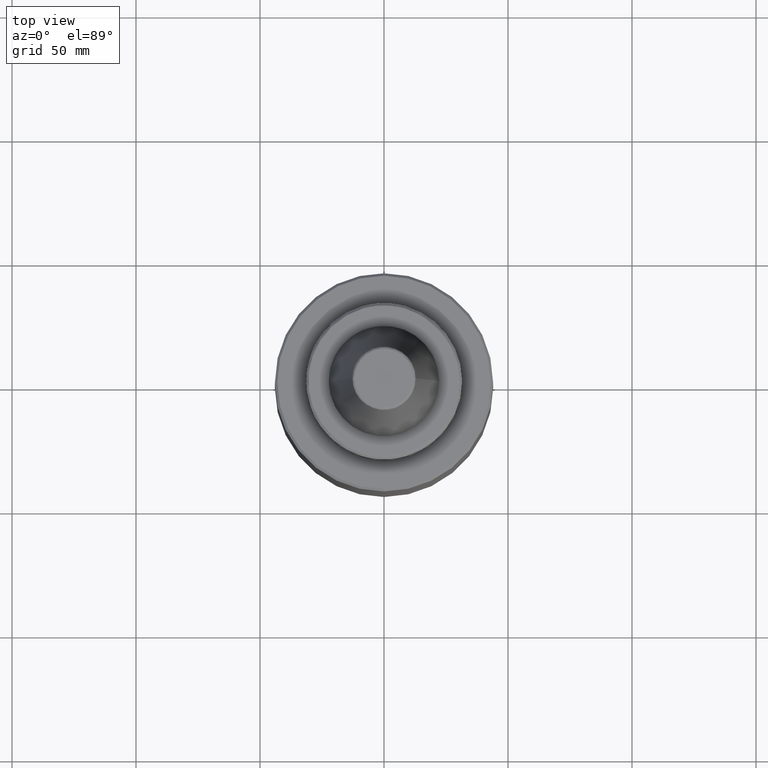
[diagram: clean part render]
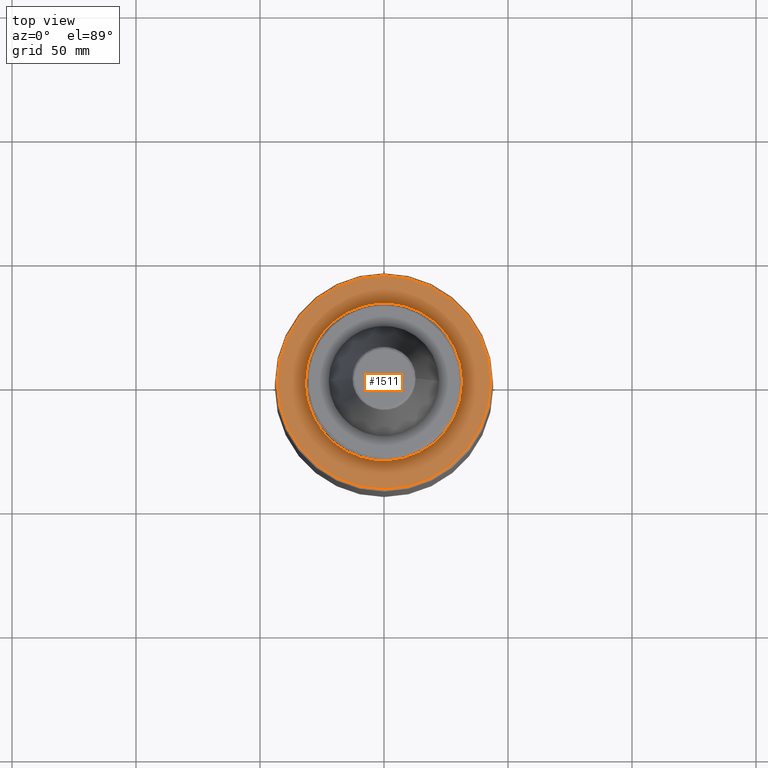
[diagram: same view with one face highlighted and labeled with its STEP entity id]
A machine part, top view. The second image highlights one B-rep face of the part: STEP entity #1511.
In plain terms, the highlighted planar face has unit normal (0, 0, 1).
Its self-contained STEP definition (entity closure, byte-faithful):
#6 = CARTESIAN_POINT ( 'NONE',  ( -27.07609555106935800, -16.42413627984889500, -29.50000000000000000 ) ) ;
#16 = CARTESIAN_POINT ( 'NONE',  ( -17.20717148331711500, -26.56388929144873900, -29.50000000000000400 ) ) ;
#34 = CARTESIAN_POINT ( 'NONE',  ( -8.261513448397821000, -30.58311603042431800, -29.50000000000000400 ) ) ;
#48 = CARTESIAN_POINT ( 'NONE',  ( 6.200021980427727900, -31.03726868350097600, -29.50000000000000400 ) ) ;
#58 = CARTESIAN_POINT ( 'NONE',  ( 17.43336824129123000, -26.41599589247358500, -29.50000000000000700 ) ) ;
#67 = CARTESIAN_POINT ( 'NONE',  ( 29.03418460625253400, -12.64449650263267700, -29.50000000000000400 ) ) ;
#84 = CARTESIAN_POINT ( 'NONE',  ( -29.25290564069809600, -12.08397884370890400, -29.50000000000001100 ) ) ;
#96 = CARTESIAN_POINT ( 'NONE',  ( 31.19626306432113000, -5.342471463923958600, -29.50000000000000400 ) ) ;
#280 = CARTESIAN_POINT ( 'NONE',  ( -30.30064354285053300, -9.243946463727466400, -29.50000000000000400 ) ) ;
#295 = CARTESIAN_POINT ( 'NONE',  ( -26.41599589247657000, -17.43336824128736500, -29.50000000000000400 ) ) ;
#308 = CARTESIAN_POINT ( 'NONE',  ( -16.92611399322744200, -26.74437667563228500, -29.50000000000000400 ) ) ;
#321 = CARTESIAN_POINT ( 'NONE',  ( -5.640117317328692300, -31.14341794274573500, -29.50000000000000700 ) ) ;
#329 = CARTESIAN_POINT ( 'NONE',  ( 7.513628569923772800, -30.75290109875445700, -29.50000000000001100 ) ) ;
#340 = VERTEX_POINT ( 'NONE', #1072 ) ;
#344 = CARTESIAN_POINT ( 'NONE',  ( 17.71735920059578400, -26.22692690785366700, -29.50000000000000400 ) ) ;
#355 = CARTESIAN_POINT ( 'NONE',  ( 27.47332660413469100, -15.73065850043774800, -29.50000000000000700 ) ) ;
#368 = CARTESIAN_POINT ( 'NONE',  ( -12.64449650265086700, -29.03418460623957700, -29.50000000000000400 ) ) ;
#394 = DIRECTION ( 'NONE',  ( 0.0000000000000000000, 0.0000000000000000000, 1.000000000000000000 ) ) ;
#477 = EDGE_LOOP ( 'NONE', ( #1833, #1940 ) ) ;
#497 = CARTESIAN_POINT ( 'NONE',  ( -31.10989179215154000, -5.822209543889628400, -29.50000000000000000 ) ) ;
#568 = CARTESIAN_POINT ( 'NONE',  ( -30.75290109874051900, -7.513628569974984300, -29.50000000000000700 ) ) ;
#576 = CARTESIAN_POINT ( 'NONE',  ( -26.22692690786365700, -17.71735920058290500, -29.50000000000001100 ) ) ;
#586 = CARTESIAN_POINT ( 'NONE',  ( -11.59052507674464200, -29.45137044916126700, -29.50000000000000400 ) ) ;
#599 = CARTESIAN_POINT ( 'NONE',  ( -4.089757035850751300, -31.39133274997519500, -29.50000000000000400 ) ) ;
#601 = CARTESIAN_POINT ( 'NONE',  ( -31.11611089903441800, -5.788870814058767200, -29.50000000000000700 ) ) ;
#610 = CARTESIAN_POINT ( 'NONE',  ( 11.68001662415784600, -29.41599406940228400, -29.50000000000000400 ) ) ;
#621 = CARTESIAN_POINT ( 'NONE',  ( 17.54713124299296100, -26.34057274326881900, -29.50000000000000700 ) ) ;
#631 = CARTESIAN_POINT ( 'NONE',  ( 29.50980723845220800, -11.44120391862710700, -29.50000000000000700 ) ) ;
#646 = CARTESIAN_POINT ( 'NONE',  ( 11.86742848982006200, -29.34100692253654700, -29.50000000000000400 ) ) ;
#667 = PLANE ( 'NONE',  #2800 ) ;
#695 = DIRECTION ( 'NONE',  ( 1.000000000000000000, 0.0000000000000000000, -0.0000000000000000000 ) ) ;
#779 = CARTESIAN_POINT ( 'NONE',  ( -31.64999999999999900, 5.101161833143714000E-015, -29.50000000000000000 ) ) ;
#807 = VERTEX_POINT ( 'NONE', #779 ) ;
#861 = CARTESIAN_POINT ( 'NONE',  ( -29.37834403326109700, -11.77440243798705300, -29.50000000000000700 ) ) ;
#872 = CARTESIAN_POINT ( 'NONE',  ( -23.15232238993127500, -21.60756314096255400, -29.50000000000000400 ) ) ;
#886 = CARTESIAN_POINT ( 'NONE',  ( -11.53081260845848500, -29.47480116625430200, -29.50000000000000400 ) ) ;
#901 = CARTESIAN_POINT ( 'NONE',  ( -4.925308226896402400, -31.26610762366206200, -29.50000000000000700 ) ) ;
#912 = CARTESIAN_POINT ( 'NONE',  ( 10.69598742884729400, -29.80558082378211500, -29.49999999999999600 ) ) ;
#929 = CARTESIAN_POINT ( 'NONE',  ( 21.60756314099394300, -23.15232238990693100, -29.50000000000000700 ) ) ;
#943 = CARTESIAN_POINT ( 'NONE',  ( 29.59050804948334300, -11.23183706391116300, -29.50000000000000400 ) ) ;
#954 = CARTESIAN_POINT ( 'NONE',  ( 31.13257993299622900, -5.699635186038880100, -29.50000000000000400 ) ) ;
#962 = CARTESIAN_POINT ( 'NONE',  ( 31.64999999999999900, 0.0000000000000000000, -29.50000000000000000 ) ) ;
#1064 = ORIENTED_EDGE ( 'NONE', *, *, #1759, .T. ) ;
#1072 = CARTESIAN_POINT ( 'NONE',  ( 31.64999999999999900, 0.0000000000000000000, -29.50000000000000000 ) ) ;
#1156 = CARTESIAN_POINT ( 'NONE',  ( -29.34100692253506200, -11.86742848982111200, -29.50000000000000700 ) ) ;
#1167 = CARTESIAN_POINT ( 'NONE',  ( -17.26204692002727700, -26.52826462648969800, -29.50000000000000000 ) ) ;
#1172 = CIRCLE ( 'NONE', #3500, 42.99999999999998600 ) ;
#1177 = CARTESIAN_POINT ( 'NONE',  ( -11.23183706392010500, -29.59050804948207200, -29.50000000000000000 ) ) ;
#1187 = CARTESIAN_POINT ( 'NONE',  ( -2.413468226466443800, -31.58398024170841400, -29.50000000000001100 ) ) ;
#1203 = CARTESIAN_POINT ( 'NONE',  ( 11.77440243798644700, -29.37834403326194300, -29.50000000000000400 ) ) ;
#1209 = CARTESIAN_POINT ( 'NONE',  ( 25.29549364467025200, -19.14772548220498600, -29.50000000000000000 ) ) ;
#1222 = CARTESIAN_POINT ( 'NONE',  ( 30.04727224097230800, -9.967798405709757500, -29.50000000000000000 ) ) ;
#1232 = CARTESIAN_POINT ( 'NONE',  ( 28.37186178965306700, -14.09884460350804500, -29.50000000000000700 ) ) ;
#1368 = CARTESIAN_POINT ( 'NONE',  ( -31.47387163679484700, -3.855757475123994900, -29.50000000000000000 ) ) ;
#1418 = CARTESIAN_POINT ( 'NONE',  ( -28.69681995900775100, -13.36898882273398600, -29.50000000000001400 ) ) ;
#1430 = CARTESIAN_POINT ( 'NONE',  ( -19.14772548223935500, -25.29549364464998000, -29.50000000000000400 ) ) ;
#1442 = CARTESIAN_POINT ( 'NONE',  ( -9.967798405738395900, -30.04727224096823300, -29.50000000000000000 ) ) ;
#1454 = CARTESIAN_POINT ( 'NONE',  ( 5.885247998906580200, -31.09802881274082200, -29.50000000000000400 ) ) ;
#1464 = CARTESIAN_POINT ( 'NONE',  ( 15.04422307662112200, -27.88209774165038700, -29.50000000000000700 ) ) ;
#1472 = CARTESIAN_POINT ( 'NONE',  ( 26.63630893304099300, -17.09486442576637400, -29.50000000000000400 ) ) ;
#1492 = CARTESIAN_POINT ( 'NONE',  ( 29.74798957516023300, -10.81198370734984900, -29.50000000000000700 ) ) ;
#1502 = CARTESIAN_POINT ( 'NONE',  ( 31.26609520832629500, -4.925375324073615800, -29.50000000000000400 ) ) ;
#1511 = ADVANCED_FACE ( 'NONE', ( #3148, #3311 ), #667, .T. ) ;
#1612 = EDGE_CURVE ( 'NONE', #340, #807, #2982, .T. ) ;
#1666 = CARTESIAN_POINT ( 'NONE',  ( -31.08009448244251900, -5.979765201420449600, -29.50000000000000400 ) ) ;
#1676 = CARTESIAN_POINT ( 'NONE',  ( -29.07277764978576700, -12.51503781658421700, -29.50000000000000000 ) ) ;
#1685 = CARTESIAN_POINT ( 'NONE',  ( 5.327213576290983700E-015, -42.99999999999998600, -29.50000000000000000 ) ) ;
#1688 = CARTESIAN_POINT ( 'NONE',  ( -16.53033406039365600, -26.99260270316083100, -29.50000000000000400 ) ) ;
#1695 = CARTESIAN_POINT ( 'NONE',  ( -5.727594904005914400, -31.12745012435315000, -29.50000000000000700 ) ) ;
#1703 = CARTESIAN_POINT ( 'NONE',  ( 5.979765201412178000, -31.08009448244473900, -29.50000000000000000 ) ) ;
#1715 = CARTESIAN_POINT ( 'NONE',  ( 13.36898882272739000, -28.69681995901695600, -29.50000000000000000 ) ) ;
#1729 = CARTESIAN_POINT ( 'NONE',  ( 26.56388929145034100, -17.20717148331487700, -29.50000000000000400 ) ) ;
#1739 = CARTESIAN_POINT ( 'NONE',  ( -31.09802881273952500, -5.885247998911362200, -29.50000000000000000 ) ) ;
#1746 = DIRECTION ( 'NONE',  ( 0.0000000000000000000, 1.000000000000000000, 0.0000000000000000000 ) ) ;
#1749 = DIRECTION ( 'NONE',  ( 0.0000000000000000000, 3.942553354492745700E-017, -1.000000000000000000 ) ) ;
#1750 = CARTESIAN_POINT ( 'NONE',  ( 31.39131146654246200, -4.089872059583135500, -29.50000000000000700 ) ) ;
#1751 = CARTESIAN_POINT ( 'NONE',  ( 0.0000000000000000000, -3.942553354492735900E-017, -29.50000000000000000 ) ) ;
#1759 = EDGE_CURVE ( 'NONE', #807, #340, #3274, .T. ) ;
#1793 = VERTEX_POINT ( 'NONE', #3159 ) ;
#1833 = ORIENTED_EDGE ( 'NONE', *, *, #2231, .F. ) ;
#1940 = ORIENTED_EDGE ( 'NONE', *, *, #2410, .F. ) ;
#1945 = CARTESIAN_POINT ( 'NONE',  ( -26.45433370375787500, -17.37512947056418300, -29.49999999999999600 ) ) ;
#1962 = CARTESIAN_POINT ( 'NONE',  ( -15.73065850046162600, -27.47332660411766600, -29.50000000000000400 ) ) ;
#1969 = CARTESIAN_POINT ( 'NONE',  ( -5.342435519007597800, -31.19626971539387100, -29.50000000000000000 ) ) ;
#1984 = CARTESIAN_POINT ( 'NONE',  ( 6.639402097802073600, -30.94770097260141000, -29.50000000000000000 ) ) ;
#1990 = CARTESIAN_POINT ( 'NONE',  ( 16.42413627984385400, -27.07609555107639900, -29.50000000000000400 ) ) ;
#2006 = CARTESIAN_POINT ( 'NONE',  ( 26.99260270317076400, -16.53033406037971200, -29.50000000000001100 ) ) ;
#2016 = CARTESIAN_POINT ( 'NONE',  ( -24.24548925215356500, -20.39569566202949200, -29.50000000000000700 ) ) ;
#2061 = CARTESIAN_POINT ( 'NONE',  ( 0.0000000000000000000, 31.65000000000000600, -29.50000000000000400 ) ) ;
#2091 = DIRECTION ( 'NONE',  ( 0.0000000000000000000, 1.000000000000000000, 0.0000000000000000000 ) ) ;
#2097 = DIRECTION ( 'NONE',  ( 0.0000000000000000000, 3.942553354492745700E-017, -1.000000000000000000 ) ) ;
#2099 = CARTESIAN_POINT ( 'NONE',  ( 0.0000000000000000000, -3.942553354492735900E-017, -29.50000000000000000 ) ) ;
#2138 = CARTESIAN_POINT ( 'NONE',  ( -31.64999999999999900, 5.101161833143714000E-015, -29.50000000000000000 ) ) ;
#2186 = ORIENTED_EDGE ( 'NONE', *, *, #1612, .T. ) ;
#2216 = CARTESIAN_POINT ( 'NONE',  ( -30.94770097259329600, -6.639402097831948300, -29.50000000000001400 ) ) ;
#2228 = CARTESIAN_POINT ( 'NONE',  ( -26.34057274327467400, -17.54713124298542200, -29.50000000000001400 ) ) ;
#2231 = EDGE_CURVE ( 'NONE', #1793, #2511, #1172, .T. ) ;
#2244 = CARTESIAN_POINT ( 'NONE',  ( -11.61912571560149300, -29.44010020120048000, -29.50000000000000400 ) ) ;
#2258 = CARTESIAN_POINT ( 'NONE',  ( -5.550837089210300900, -31.15954442498183500, -29.50000000000000700 ) ) ;
#2272 = CARTESIAN_POINT ( 'NONE',  ( 9.243946463659197500, -30.30064354286910000, -29.50000000000000700 ) ) ;
#2283 = CARTESIAN_POINT ( 'NONE',  ( 18.11164195368740000, -25.95817551062893400, -29.50000000000000000 ) ) ;
#2299 = CARTESIAN_POINT ( 'NONE',  ( 29.45137044916146300, -11.59052507674328900, -29.50000000000000400 ) ) ;
#2306 = CARTESIAN_POINT ( 'NONE',  ( 5.822209543887208100, -31.10989179215218700, -29.50000000000000400 ) ) ;
#2321 = CARTESIAN_POINT ( 'NONE',  ( 31.58395186379808800, -2.413621591442965300, -29.50000000000000700 ) ) ;
#2361 = CARTESIAN_POINT ( 'NONE',  ( -31.64999999999998400, -1.936047272175806200, -29.50000000000000000 ) ) ;
#2410 = EDGE_CURVE ( 'NONE', #2511, #1793, #2542, .T. ) ;
#2443 = EDGE_LOOP ( 'NONE', ( #1064, #2186 ) ) ;
#2511 = VERTEX_POINT ( 'NONE', #1685 ) ;
#2513 = CARTESIAN_POINT ( 'NONE',  ( -29.41599406940262200, -11.68001662415660700, -29.50000000000000400 ) ) ;
#2524 = CARTESIAN_POINT ( 'NONE',  ( -25.40636159118718900, -18.88854420123620400, -29.50000000000001100 ) ) ;
#2534 = CARTESIAN_POINT ( 'NONE',  ( -14.09884460353986800, -28.37186178963038300, -29.50000000000000700 ) ) ;
#2542 = CIRCLE ( 'NONE', #3029, 42.99999999999998600 ) ;
#2548 = CARTESIAN_POINT ( 'NONE',  ( -0.9677582287776547200, -31.65001621594876700, -29.50000000000000700 ) ) ;
#2563 = CARTESIAN_POINT ( 'NONE',  ( 11.71233645736165100, -29.40314197785891500, -29.50000000000000700 ) ) ;
#2572 = CARTESIAN_POINT ( 'NONE',  ( 20.39569566208442500, -24.24548925211096800, -29.50000000000001100 ) ) ;
#2586 = CARTESIAN_POINT ( 'NONE',  ( 29.44010020120006700, -11.61912571560205600, -29.50000000000000000 ) ) ;
#2594 = CARTESIAN_POINT ( 'NONE',  ( -5.699629751509859500, -31.13258093857508500, -29.50000000000000400 ) ) ;
#2798 = CARTESIAN_POINT ( 'NONE',  ( -29.80558082377152500, -10.69598742888630800, -29.50000000000000700 ) ) ;
#2800 = AXIS2_PLACEMENT_3D ( 'NONE', #2061, #394, #695 ) ;
#2809 = CARTESIAN_POINT ( 'NONE',  ( -25.95817551064757100, -18.11164195366337600, -29.50000000000001100 ) ) ;
#2819 = CARTESIAN_POINT ( 'NONE',  ( -11.44120391863173900, -29.50980723845154300, -29.50000000000000700 ) ) ;
#2831 = CARTESIAN_POINT ( 'NONE',  ( 1.935516457555317600, -31.64996756810247500, -29.50000000000000700 ) ) ;
#2843 = CARTESIAN_POINT ( 'NONE',  ( 12.51503781658037600, -29.07277764979113500, -29.50000000000000000 ) ) ;
#2854 = CARTESIAN_POINT ( 'NONE',  ( 23.92466259167479900, -20.83514409384886400, -29.50000000000000700 ) ) ;
#2868 = CARTESIAN_POINT ( 'NONE',  ( 29.47480116625469300, -11.53081260845581100, -29.50000000000001400 ) ) ;
#2881 = CARTESIAN_POINT ( 'NONE',  ( 18.88854420127739400, -25.40636159115523500, -29.50000000000000700 ) ) ;
#2969 = CARTESIAN_POINT ( 'NONE',  ( 31.12745012435305700, -5.727594904006590300, -29.50000000000000700 ) ) ;
#2982 = B_SPLINE_CURVE_WITH_KNOTS ( 'NONE', 3,
 ( #962, #3412, #2321, #1750, #1502, #96, #3129, #3398, #954, #2969, #3381, #3115, #1222, #1492, #943, #631, #2868, #2299, #2586, #67, #1232, #355, #2006, #3367, #1472, #1729, #3106, #1209, #2854, #929, #2572, #2881, #2283, #344, #621, #58, #3357, #1990, #1464, #1715, #2843, #3095, #646, #1203, #2563, #610, #912, #2272, #329, #1984, #48, #1703, #1454, #2306, #3086, #3345, #2831, #2548, #1187, #599, #901, #1969, #2258, #321, #2594, #1695, #3336, #34, #1442, #3077, #1177, #2819, #886, #586, #2244, #368, #2534, #1962, #1688, #308, #3327, #16, #1167, #1430, #3065, #872, #2016, #2524, #2809, #576, #2228, #295, #1945, #6, #3316, #1418, #1676, #84, #1156, #861, #3058, #2513, #2798, #280, #568, #2216, #3577, #1666, #1739, #497, #601, #1368, #2361, #2138 ),
 .UNSPECIFIED., .F., .F.,
 ( 4, 1, 1, 1, 1, 1, 2, 2, 1, 1, 1, 1, 1, 2, 2, 1, 1, 1, 1, 2, 2, 2, 1, 1, 1, 1, 2, 2, 1, 1, 1, 1, 1, 2, 2, 1, 1, 1, 1, 1, 2, 2, 2, 1, 1, 1, 1, 1, 2, 2, 1, 1, 1, 1, 1, 2, 2, 1, 1, 1, 1, 2, 2, 2, 1, 1, 1, 1, 2, 2, 1, 1, 1, 1, 1, 2, 2, 1, 1, 1, 1, 1, 2, 2, 4 ),
 ( 0.0000000000000000000, 0.03124999999999720400, 0.04687499999999581600, 0.05468749999999515000, 0.05859374999999481000, 0.06054687499999462900, 0.06152343749999455300, 0.06249999999999447700, 0.09374999999999258900, 0.1093749999999916200, 0.1171874999999911200, 0.1210937499999908300, 0.1230468749999907200, 0.1240234374999906700, 0.1249999999999906500, 0.1562499999999905100, 0.1718749999999904800, 0.1796874999999904500, 0.1835937499999904000, 0.1855468749999903100, 0.1874999999999902000, 0.2499999999999856800, 0.2812499999999834000, 0.2968749999999822400, 0.3046874999999817900, 0.3085937499999816300, 0.3105468749999815100, 0.3124999999999814600, 0.3437499999999812900, 0.3593749999999812400, 0.3671874999999811800, 0.3710937499999811800, 0.3730468749999811800, 0.3740234374999811800, 0.3749999999999811800, 0.4062499999999812900, 0.4218749999999813500, 0.4296874999999813500, 0.4335937499999813500, 0.4355468749999813500, 0.4365234374999813500, 0.4374999999999814000, 0.4999999999999840100, 0.5312499999999853500, 0.5468749999999859000, 0.5546874999999862300, 0.5585937499999864600, 0.5605468749999864600, 0.5615234374999864600, 0.5624999999999865700, 0.5937499999999877900, 0.6093749999999885600, 0.6171874999999889000, 0.6210937499999890100, 0.6230468749999892300, 0.6240234374999892300, 0.6249999999999892300, 0.6562499999999902300, 0.6718749999999906700, 0.6796874999999909000, 0.6835937499999910100, 0.6855468749999910100, 0.6874999999999911200, 0.7499999999999931200, 0.7812499999999941200, 0.7968749999999946700, 0.8046874999999948900, 0.8085937499999951200, 0.8105468749999953400, 0.8124999999999954500, 0.8437499999999967800, 0.8593749999999974500, 0.8671874999999977800, 0.8710937499999980000, 0.8730468749999980000, 0.8740234374999981100, 0.8749999999999981100, 0.9062499999999984500, 0.9218749999999985600, 0.9296874999999986700, 0.9335937499999987800, 0.9355468749999987800, 0.9365234374999987800, 0.9374999999999987800, 1.000000000000000000 ),
 .UNSPECIFIED. ) ;
#3029 = AXIS2_PLACEMENT_3D ( 'NONE', #1751, #1749, #1746 ) ;
#3058 = CARTESIAN_POINT ( 'NONE',  ( -29.40314197785847800, -11.71233645736195000, -29.50000000000000400 ) ) ;
#3065 = CARTESIAN_POINT ( 'NONE',  ( -20.83514409380016700, -23.92466259173757600, -29.50000000000000700 ) ) ;
#3077 = CARTESIAN_POINT ( 'NONE',  ( -10.81198370736655600, -29.74798957515786700, -29.50000000000000400 ) ) ;
#3086 = CARTESIAN_POINT ( 'NONE',  ( 5.788868074911690100, -31.11611140596767600, -29.49999999999999600 ) ) ;
#3095 = CARTESIAN_POINT ( 'NONE',  ( 12.08397884370684800, -29.25290564070095900, -29.50000000000000400 ) ) ;
#3106 = CARTESIAN_POINT ( 'NONE',  ( 26.52826462648907600, -17.26204692002834700, -29.50000000000000400 ) ) ;
#3115 = CARTESIAN_POINT ( 'NONE',  ( 30.58311603042974600, -8.261513448359641700, -29.50000000000000400 ) ) ;
#3129 = CARTESIAN_POINT ( 'NONE',  ( 31.15954098859427300, -5.550855660750418300, -29.50000000000000700 ) ) ;
#3148 = FACE_BOUND ( 'NONE', #2443, .T. ) ;
#3159 = CARTESIAN_POINT ( 'NONE',  ( 0.0000000000000000000, 42.99999999999998600, -29.50000000000000000 ) ) ;
#3222 = CARTESIAN_POINT ( 'NONE',  ( 31.64999999999999900, 0.0000000000000000000, -29.50000000000000000 ) ) ;
#3224 = CARTESIAN_POINT ( 'NONE',  ( 31.64999999999999900, 1.936047272235574400, -29.50000000000000700 ) ) ;
#3230 = CARTESIAN_POINT ( 'NONE',  ( 31.47387163679484700, 3.855757475183676100, -29.49999999999999600 ) ) ;
#3231 = CARTESIAN_POINT ( 'NONE',  ( 31.11611089903440700, 5.788870814057825800, -29.49999999999999600 ) ) ;
#3232 = CARTESIAN_POINT ( 'NONE',  ( 31.10989179215071900, 5.822209543892134900, -29.50000000000000700 ) ) ;
#3233 = CARTESIAN_POINT ( 'NONE',  ( 31.09802881273790800, 5.885247998916315600, -29.50000000000000700 ) ) ;
#3238 = CARTESIAN_POINT ( 'NONE',  ( 31.08009448243968400, 5.979765201429001900, -29.50000000000000700 ) ) ;
#3241 = CARTESIAN_POINT ( 'NONE',  ( 31.03726868349115300, 6.200021980460300100, -29.50000000000000700 ) ) ;
#3244 = CARTESIAN_POINT ( 'NONE',  ( 30.94770097258308500, 6.639402097862878300, -29.50000000000000700 ) ) ;
#3246 = CARTESIAN_POINT ( 'NONE',  ( 30.75290109872301900, 7.513628570028020100, -29.50000000000000700 ) ) ;
#3248 = CARTESIAN_POINT ( 'NONE',  ( 30.30064354282721300, 9.243946463798161900, -29.50000000000000400 ) ) ;
#3251 = CARTESIAN_POINT ( 'NONE',  ( 29.80558082375818100, 10.69598742892670300, -29.49999999999999600 ) ) ;
#3253 = CARTESIAN_POINT ( 'NONE',  ( 29.41599406940305500, 11.68001662415535500, -29.50000000000001100 ) ) ;
#3262 = CARTESIAN_POINT ( 'NONE',  ( 29.40314197785761900, 11.71233645736371700, -29.50000000000000700 ) ) ;
#3272 = CARTESIAN_POINT ( 'NONE',  ( 29.37834403325937100, 11.77440243799053800, -29.50000000000000700 ) ) ;
#3274 = B_SPLINE_CURVE_WITH_KNOTS ( 'NONE', 3,
 ( #3574, #3561, #3559, #3556, #3555, #3554, #3549, #3547, #3545, #3542, #3536, #3534, #3531, #3525, #3522, #3519, #3514, #3513, #3512, #3508, #3501, #3499, #3497, #3496, #3493, #3488, #3486, #3483, #3475, #3473, #3470, #3469, #3466, #3463, #3460, #3458, #3455, #3454, #3444, #3443, #3439, #3438, #3434, #3429, #3425, #3424, #3419, #3417, #3415, #3413, #3411, #3407, #3405, #3401, #3399, #3394, #3389, #3385, #3383, #3382, #3379, #3376, #3373, #3370, #3368, #3365, #3361, #3360, #3359, #3358, #3355, #3350, #3347, #3346, #3342, #3341, #3339, #3337, #3333, #3332, #3328, #3324, #3322, #3321, #3319, #3313, #3308, #3304, #3302, #3299, #3297, #3296, #3293, #3291, #3289, #3284, #3281, #3277, #3276, #3272, #3262, #3253, #3251, #3248, #3246, #3244, #3241, #3238, #3233, #3232, #3231, #3230, #3224, #3222 ),
 .UNSPECIFIED., .F., .F.,
 ( 4, 1, 1, 1, 1, 1, 2, 2, 1, 1, 1, 1, 1, 2, 2, 1, 1, 1, 1, 2, 2, 2, 1, 1, 1, 1, 2, 2, 1, 1, 1, 1, 1, 2, 2, 1, 1, 1, 1, 1, 2, 2, 2, 1, 1, 1, 1, 1, 2, 2, 1, 1, 1, 1, 1, 2, 2, 1, 1, 1, 1, 2, 2, 2, 1, 1, 1, 1, 2, 2, 1, 1, 1, 1, 1, 2, 2, 1, 1, 1, 1, 1, 2, 2, 4 ),
 ( 0.0000000000000000000, 0.03124999999999748100, 0.04687499999999622500, 0.05468749999999562200, 0.05859374999999533000, 0.06054687499999519100, 0.06152343749999511500, 0.06249999999999504600, 0.09374999999999301900, 0.1093749999999920800, 0.1171874999999916000, 0.1210937499999913800, 0.1230468749999912200, 0.1240234374999911700, 0.1249999999999911200, 0.1562499999999898400, 0.1718749999999892300, 0.1796874999999888100, 0.1835937499999886500, 0.1855468749999885600, 0.1874999999999884800, 0.2499999999999875700, 0.2812499999999870700, 0.2968749999999867900, 0.3046874999999866800, 0.3085937499999865700, 0.3105468749999865100, 0.3124999999999864600, 0.3437499999999859600, 0.3593749999999856200, 0.3671874999999855100, 0.3710937499999854600, 0.3730468749999854600, 0.3740234374999854600, 0.3749999999999854000, 0.4062499999999866800, 0.4218749999999872300, 0.4296874999999875700, 0.4335937499999876800, 0.4355468749999877900, 0.4365234374999877900, 0.4374999999999878400, 0.4999999999999897900, 0.5312499999999906700, 0.5468749999999912300, 0.5546874999999914500, 0.5585937499999915600, 0.5605468749999916700, 0.5615234374999916700, 0.5624999999999917800, 0.5937499999999928900, 0.6093749999999934500, 0.6171874999999936700, 0.6210937499999937800, 0.6230468749999938900, 0.6240234374999938900, 0.6249999999999938900, 0.6562499999999941200, 0.6718749999999941200, 0.6796874999999942300, 0.6835937499999941200, 0.6855468749999941200, 0.6874999999999942300, 0.7499999999999974500, 0.7812499999999991100, 0.7968749999999998900, 0.8046875000000004400, 0.8085937500000006700, 0.8105468750000008900, 0.8125000000000010000, 0.8437500000000013300, 0.8593750000000015500, 0.8671875000000016700, 0.8710937500000018900, 0.8730468750000018900, 0.8740234375000018900, 0.8750000000000020000, 0.9062500000000013300, 0.9218750000000011100, 0.9296875000000008900, 0.9335937500000007800, 0.9355468750000007800, 0.9365234375000007800, 0.9375000000000007800, 1.000000000000000000 ),
 .UNSPECIFIED. ) ;
#3276 = CARTESIAN_POINT ( 'NONE',  ( 29.34100692253208800, 11.86742848982714400, -29.50000000000000700 ) ) ;
#3277 = CARTESIAN_POINT ( 'NONE',  ( 29.25290564069233000, 12.08397884372054800, -29.49999999999999600 ) ) ;
#3281 = CARTESIAN_POINT ( 'NONE',  ( 29.07277764977504800, 12.51503781660596100, -29.50000000000000400 ) ) ;
#3284 = CARTESIAN_POINT ( 'NONE',  ( 28.69681995898934800, 13.36898882277124300, -29.50000000000000700 ) ) ;
#3289 = CARTESIAN_POINT ( 'NONE',  ( 27.88209774161356000, 15.04422307667961400, -29.50000000000000400 ) ) ;
#3291 = CARTESIAN_POINT ( 'NONE',  ( 27.07609555105534900, 16.42413627987728800, -29.50000000000000700 ) ) ;
#3293 = CARTESIAN_POINT ( 'NONE',  ( 26.45433370375874200, 17.37512947056241300, -29.50000000000000400 ) ) ;
#3296 = CARTESIAN_POINT ( 'NONE',  ( 26.41599589247654100, 17.43336824128653400, -29.49999999999999600 ) ) ;
#3297 = CARTESIAN_POINT ( 'NONE',  ( 26.34057274327462000, 17.54713124298377700, -29.50000000000000700 ) ) ;
#3299 = CARTESIAN_POINT ( 'NONE',  ( 26.22692690786357900, 17.71735920058008800, -29.50000000000000400 ) ) ;
#3302 = CARTESIAN_POINT ( 'NONE',  ( 25.95817551064745000, 18.11164195365809700, -29.50000000000000700 ) ) ;
#3304 = CARTESIAN_POINT ( 'NONE',  ( 25.40636159118698600, 18.88854420122715500, -29.50000000000000700 ) ) ;
#3308 = CARTESIAN_POINT ( 'NONE',  ( 24.24548925215330500, 20.39569566201743100, -29.50000000000000700 ) ) ;
#3311 = FACE_OUTER_BOUND ( 'NONE', #477, .T. ) ;
#3313 = CARTESIAN_POINT ( 'NONE',  ( 23.15232238993111100, 21.60756314095566200, -29.50000000000000400 ) ) ;
#3316 = CARTESIAN_POINT ( 'NONE',  ( -27.88209774163809500, -15.04422307662992400, -29.50000000000000700 ) ) ;
#3319 = CARTESIAN_POINT ( 'NONE',  ( 20.83514409380044100, 23.92466259175136800, -29.50000000000000000 ) ) ;
#3321 = CARTESIAN_POINT ( 'NONE',  ( 19.14772548229196000, 25.29549364461144400, -29.50000000000000000 ) ) ;
#3322 = CARTESIAN_POINT ( 'NONE',  ( 17.26204692002563200, 26.52826462649090200, -29.50000000000000000 ) ) ;
#3324 = CARTESIAN_POINT ( 'NONE',  ( 17.20717148331225800, 26.56388929145217800, -29.50000000000000700 ) ) ;
#3327 = CARTESIAN_POINT ( 'NONE',  ( -17.09486442577074400, -26.63630893303788100, -29.50000000000000700 ) ) ;
#3328 = CARTESIAN_POINT ( 'NONE',  ( 17.09486442576125500, 26.63630893304457100, -29.50000000000000700 ) ) ;
#3332 = CARTESIAN_POINT ( 'NONE',  ( 16.92611399321124600, 26.74437667564370700, -29.50000000000001100 ) ) ;
#3333 = CARTESIAN_POINT ( 'NONE',  ( 16.53033406036340100, 26.99260270318216100, -29.50000000000000700 ) ) ;
#3336 = CARTESIAN_POINT ( 'NONE',  ( -6.768273163675719000, -30.93488806339005500, -29.50000000000000700 ) ) ;
#3337 = CARTESIAN_POINT ( 'NONE',  ( 15.73065850040978100, 27.47332660415423100, -29.50000000000000700 ) ) ;
#3339 = CARTESIAN_POINT ( 'NONE',  ( 14.09884460347074300, 28.37186178967911200, -29.50000000000000700 ) ) ;
#3341 = CARTESIAN_POINT ( 'NONE',  ( 12.64449650261136400, 29.03418460626744500, -29.50000000000000000 ) ) ;
#3342 = CARTESIAN_POINT ( 'NONE',  ( 11.61912571560271200, 29.44010020119963400, -29.50000000000000400 ) ) ;
#3345 = CARTESIAN_POINT ( 'NONE',  ( 3.855932780536562200, -31.47383919306544800, -29.50000000000000700 ) ) ;
#3346 = CARTESIAN_POINT ( 'NONE',  ( 11.59052507674326700, 29.45137044916111100, -29.50000000000000400 ) ) ;
#3347 = CARTESIAN_POINT ( 'NONE',  ( 11.53081260845577700, 29.47480116625396800, -29.50000000000000700 ) ) ;
#3350 = CARTESIAN_POINT ( 'NONE',  ( 11.44120391862705500, 29.50980723845092900, -29.50000000000000700 ) ) ;
#3355 = CARTESIAN_POINT ( 'NONE',  ( 11.23183706391105100, 29.59050804948086400, -29.50000000000000000 ) ) ;
#3357 = CARTESIAN_POINT ( 'NONE',  ( 17.37512947056448800, -26.45433370375744900, -29.50000000000000000 ) ) ;
#3358 = CARTESIAN_POINT ( 'NONE',  ( 10.81198370734967400, 29.74798957515557500, -29.50000000000000000 ) ) ;
#3359 = CARTESIAN_POINT ( 'NONE',  ( 9.967798405709469700, 30.04727224096432900, -29.50000000000001100 ) ) ;
#3360 = CARTESIAN_POINT ( 'NONE',  ( 8.261513448359242100, 30.58311603041909900, -29.50000000000001100 ) ) ;
#3361 = CARTESIAN_POINT ( 'NONE',  ( 6.768273163653661900, 30.93488806338706700, -29.49999999999999600 ) ) ;
#3365 = CARTESIAN_POINT ( 'NONE',  ( 5.727594904006593900, 31.12745012435325600, -29.50000000000000700 ) ) ;
#3367 = CARTESIAN_POINT ( 'NONE',  ( 26.74437667563759600, -16.92611399321997800, -29.50000000000000700 ) ) ;
#3368 = CARTESIAN_POINT ( 'NONE',  ( 5.699629751512085300, 31.13258093857509200, -29.50000000000000000 ) ) ;
#3370 = CARTESIAN_POINT ( 'NONE',  ( 5.640117317333102100, 31.14341794274573500, -29.50000000000000400 ) ) ;
#3373 = CARTESIAN_POINT ( 'NONE',  ( 5.550837089217933100, 31.15954442498186300, -29.50000000000000700 ) ) ;
#3376 = CARTESIAN_POINT ( 'NONE',  ( 5.342435519022393100, 31.19626971539386100, -29.50000000000000000 ) ) ;
#3379 = CARTESIAN_POINT ( 'NONE',  ( 4.925308226924011400, 31.26610762366205500, -29.50000000000000000 ) ) ;
#3381 = CARTESIAN_POINT ( 'NONE',  ( 30.93488806339314600, -6.768273163653892900, -29.49999999999999600 ) ) ;
#3382 = CARTESIAN_POINT ( 'NONE',  ( 4.089757035898085000, 31.39133274997520900, -29.50000000000001100 ) ) ;
#3383 = CARTESIAN_POINT ( 'NONE',  ( 2.413468226529589300, 31.58398024170841400, -29.50000000000000400 ) ) ;
#3385 = CARTESIAN_POINT ( 'NONE',  ( 0.9677582288137391900, 31.65001621594876000, -29.50000000000000400 ) ) ;
#3389 = CARTESIAN_POINT ( 'NONE',  ( -1.935516457627477000, 31.64996756810246100, -29.50000000000000400 ) ) ;
#3394 = CARTESIAN_POINT ( 'NONE',  ( -3.855932780571091000, 31.47383919306546200, -29.50000000000000700 ) ) ;
#3398 = CARTESIAN_POINT ( 'NONE',  ( 31.14341595534184000, -5.640128058012029700, -29.50000000000000700 ) ) ;
#3399 = CARTESIAN_POINT ( 'NONE',  ( -5.788868074911147400, 31.11611140596769300, -29.50000000000000400 ) ) ;
#3401 = CARTESIAN_POINT ( 'NONE',  ( -5.822209543887796100, 31.10989179215188100, -29.50000000000000000 ) ) ;
#3405 = CARTESIAN_POINT ( 'NONE',  ( -5.885247998907746400, 31.09802881274020300, -29.50000000000000700 ) ) ;
#3407 = CARTESIAN_POINT ( 'NONE',  ( -5.979765201414200400, 31.08009448244368800, -29.50000000000000700 ) ) ;
#3411 = CARTESIAN_POINT ( 'NONE',  ( -6.200021980431631400, 31.03726868349886200, -29.50000000000000400 ) ) ;
#3412 = CARTESIAN_POINT ( 'NONE',  ( 31.65000000000000600, -0.9678458659070936500, -29.50000000000001400 ) ) ;
#3413 = CARTESIAN_POINT ( 'NONE',  ( -6.639402097809371700, 30.94770097259747700, -29.50000000000000000 ) ) ;
#3415 = CARTESIAN_POINT ( 'NONE',  ( -7.513628569936286400, 30.75290109874769200, -29.50000000000000700 ) ) ;
#3417 = CARTESIAN_POINT ( 'NONE',  ( -9.243946463675877500, 30.30064354286010800, -29.50000000000001400 ) ) ;
#3419 = CARTESIAN_POINT ( 'NONE',  ( -10.69598742885682400, 29.80558082377697500, -29.49999999999999600 ) ) ;
#3424 = CARTESIAN_POINT ( 'NONE',  ( -11.68001662415753800, 29.41599406940246600, -29.50000000000000700 ) ) ;
#3425 = CARTESIAN_POINT ( 'NONE',  ( -11.71233645735955500, 29.40314197785983600, -29.49999999999999600 ) ) ;
#3429 = CARTESIAN_POINT ( 'NONE',  ( -11.77440243798232100, 29.37834403326375800, -29.50000000000000700 ) ) ;
#3434 = CARTESIAN_POINT ( 'NONE',  ( -11.86742848981293500, 29.34100692253967700, -29.50000000000000400 ) ) ;
#3438 = CARTESIAN_POINT ( 'NONE',  ( -12.08397884369305000, 29.25290564070699900, -29.49999999999999300 ) ) ;
#3439 = CARTESIAN_POINT ( 'NONE',  ( -12.51503781655465300, 29.07277764980243600, -29.50000000000000400 ) ) ;
#3443 = CARTESIAN_POINT ( 'NONE',  ( -13.36898882268328000, 28.69681995903632200, -29.50000000000000700 ) ) ;
#3444 = CARTESIAN_POINT ( 'NONE',  ( -15.04422307656232300, 27.88209774167618300, -29.50000000000000700 ) ) ;
#3454 = CARTESIAN_POINT ( 'NONE',  ( -16.42413627981025600, 27.07609555109113600, -29.50000000000000700 ) ) ;
#3455 = CARTESIAN_POINT ( 'NONE',  ( -17.37512947056658800, 26.45433370375652200, -29.50000000000000000 ) ) ;
#3458 = CARTESIAN_POINT ( 'NONE',  ( -17.43336824128735400, 26.41599589247700700, -29.49999999999999600 ) ) ;
#3460 = CARTESIAN_POINT ( 'NONE',  ( -17.54713124298539400, 26.34057274327553000, -29.50000000000001100 ) ) ;
#3463 = CARTESIAN_POINT ( 'NONE',  ( -17.71735920058286200, 26.22692690786513500, -29.50000000000000000 ) ) ;
#3466 = CARTESIAN_POINT ( 'NONE',  ( -18.11164195366328800, 25.95817551065032800, -29.49999999999999600 ) ) ;
#3469 = CARTESIAN_POINT ( 'NONE',  ( -18.88854420123605800, 25.40636159119194200, -29.50000000000000700 ) ) ;
#3470 = CARTESIAN_POINT ( 'NONE',  ( -20.39569566202930400, 24.24548925215991000, -29.50000000000000700 ) ) ;
#3473 = CARTESIAN_POINT ( 'NONE',  ( -21.60756314096245500, 23.15232238993490900, -29.50000000000000400 ) ) ;
#3475 = CARTESIAN_POINT ( 'NONE',  ( -23.92466259173777500, 20.83514409379292300, -29.50000000000000400 ) ) ;
#3483 = CARTESIAN_POINT ( 'NONE',  ( -25.29549364465844300, 19.14772548222384800, -29.50000000000000400 ) ) ;
#3486 = CARTESIAN_POINT ( 'NONE',  ( -26.52826462648943500, 17.26204692002775700, -29.50000000000000400 ) ) ;
#3488 = CARTESIAN_POINT ( 'NONE',  ( -26.56388929145060400, 17.20717148331442900, -29.50000000000000700 ) ) ;
#3493 = CARTESIAN_POINT ( 'NONE',  ( -26.63630893304149800, 17.09486442576549300, -29.50000000000000400 ) ) ;
#3496 = CARTESIAN_POINT ( 'NONE',  ( -26.74437667563846300, 16.92611399321847900, -29.50000000000000700 ) ) ;
#3497 = CARTESIAN_POINT ( 'NONE',  ( -26.99260270317238400, 16.53033406037693700, -29.50000000000000400 ) ) ;
#3499 = CARTESIAN_POINT ( 'NONE',  ( -27.47332660413746200, 15.73065850043296800, -29.50000000000000000 ) ) ;
#3500 = AXIS2_PLACEMENT_3D ( 'NONE', #2099, #2097, #2091 ) ;
#3501 = CARTESIAN_POINT ( 'NONE',  ( -28.37186178965678400, 14.09884460350168900, -29.50000000000001100 ) ) ;
#3508 = CARTESIAN_POINT ( 'NONE',  ( -29.03418460625466600, 12.64449650262904800, -29.50000000000000700 ) ) ;
#3512 = CARTESIAN_POINT ( 'NONE',  ( -29.44010020120001800, 11.61912571560216500, -29.50000000000000700 ) ) ;
#3513 = CARTESIAN_POINT ( 'NONE',  ( -29.45137044916126000, 11.59052507674372000, -29.50000000000000700 ) ) ;
#3514 = CARTESIAN_POINT ( 'NONE',  ( -29.47480116625427700, 11.53081260845667600, -29.50000000000000000 ) ) ;
#3519 = CARTESIAN_POINT ( 'NONE',  ( -29.50980723845148300, 11.44120391862861700, -29.50000000000000700 ) ) ;
#3522 = CARTESIAN_POINT ( 'NONE',  ( -29.59050804948192600, 11.23183706391405500, -29.50000000000000000 ) ) ;
#3525 = CARTESIAN_POINT ( 'NONE',  ( -29.74798957515757900, 10.81198370735527600, -29.50000000000000000 ) ) ;
#3531 = CARTESIAN_POINT ( 'NONE',  ( -30.04727224096778200, 9.967798405719074500, -29.50000000000000700 ) ) ;
#3534 = CARTESIAN_POINT ( 'NONE',  ( -30.58311603042370000, 8.261513448372058500, -29.50000000000000700 ) ) ;
#3536 = CARTESIAN_POINT ( 'NONE',  ( -30.93488806338968500, 6.768273163660993900, -29.50000000000000400 ) ) ;
#3542 = CARTESIAN_POINT ( 'NONE',  ( -31.12745012435315700, 5.727594904006372700, -29.50000000000000000 ) ) ;
#3545 = CARTESIAN_POINT ( 'NONE',  ( -31.13257993299621900, 5.699635186039563100, -29.50000000000000400 ) ) ;
#3547 = CARTESIAN_POINT ( 'NONE',  ( -31.14341595534184700, 5.640128058013378800, -29.50000000000000700 ) ) ;
#3549 = CARTESIAN_POINT ( 'NONE',  ( -31.15954098859426900, 5.550855660752747900, -29.50000000000000700 ) ) ;
#3554 = CARTESIAN_POINT ( 'NONE',  ( -31.19626306432113300, 5.342471463928463400, -29.50000000000001100 ) ) ;
#3555 = CARTESIAN_POINT ( 'NONE',  ( -31.26609520832630200, 4.925375324082008200, -29.50000000000000400 ) ) ;
#3556 = CARTESIAN_POINT ( 'NONE',  ( -31.39131146654245400, 4.089872059597500900, -29.50000000000000700 ) ) ;
#3559 = CARTESIAN_POINT ( 'NONE',  ( -31.58395186379806700, 2.413621591462126800, -29.49999999999999600 ) ) ;
#3561 = CARTESIAN_POINT ( 'NONE',  ( -31.64999999999999100, 0.9678458659180476700, -29.50000000000000700 ) ) ;
#3574 = CARTESIAN_POINT ( 'NONE',  ( -31.64999999999999900, 5.101161833143714000E-015, -29.50000000000000000 ) ) ;
#3577 = CARTESIAN_POINT ( 'NONE',  ( -31.03726868349661300, -6.200021980443736400, -29.50000000000000400 ) ) ;